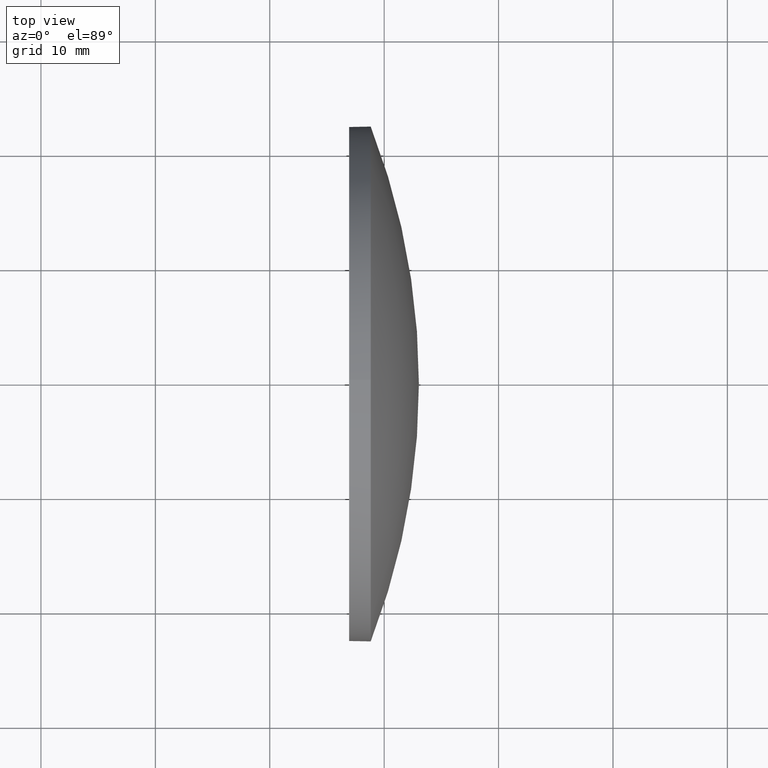
[diagram: clean part render]
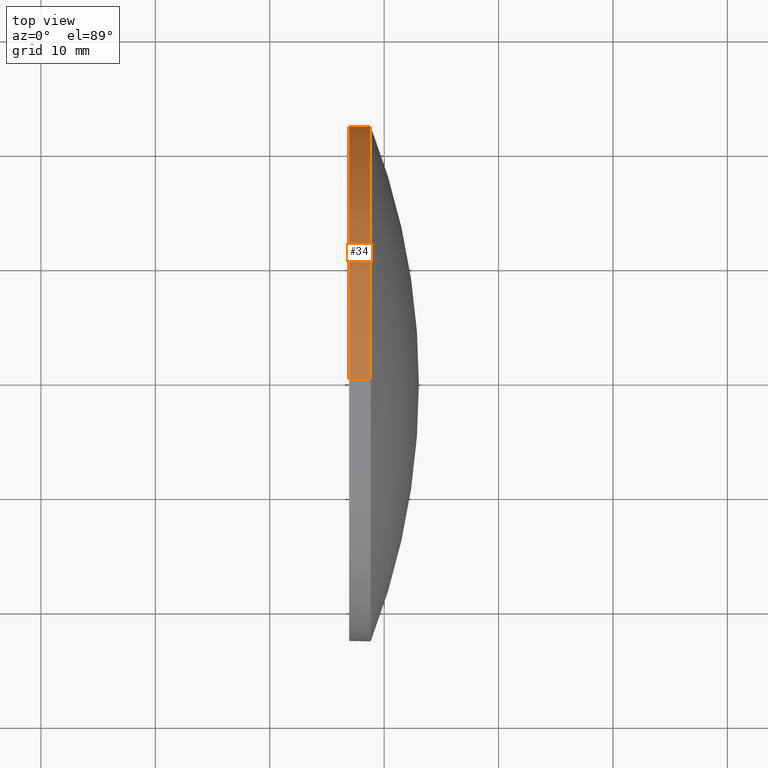
[diagram: same view with one face highlighted and labeled with its STEP entity id]
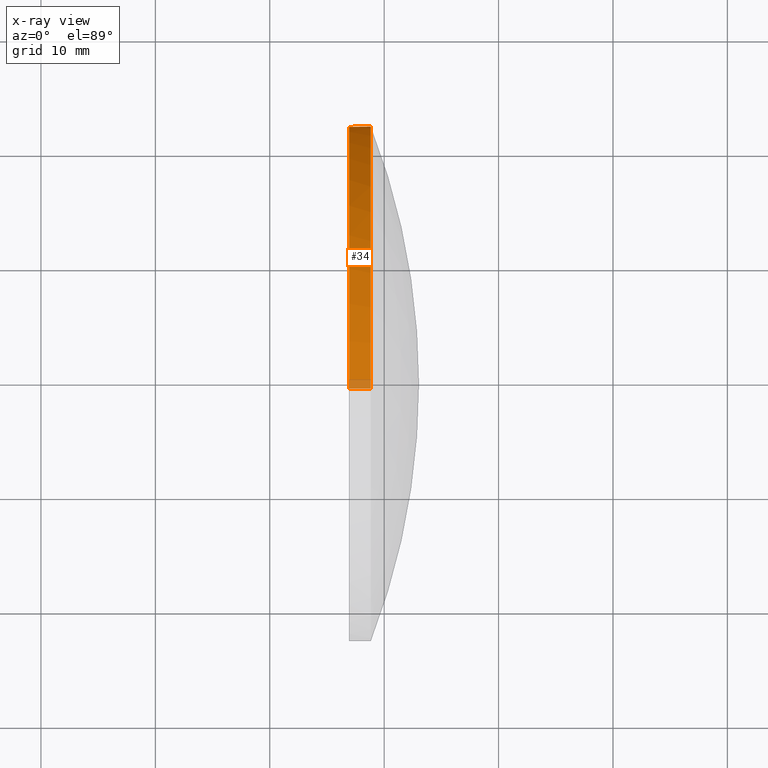
[diagram: x-ray of the same camera — body ghosted, the highlighted face saturated]
A machine part, top view. The second image highlights one B-rep face of the part: STEP entity #34.
The next image is the same camera in x-ray: the body ghosted, the highlighted face saturated — about 3% of this face is hidden behind the body in this view.
In plain terms, the highlighted cylindrical surface (partial cylindrical patch) has radius 22.5 mm, axis along (-1, -0, -0).
Its self-contained STEP definition (entity closure, byte-faithful):
#1 = DIRECTION ( 'NONE',  ( -1.000000000000000000, -0.0000000000000000000, -0.0000000000000000000 ) ) ;
#2 = DIRECTION ( 'NONE',  ( 0.0000000000000000000, 0.0000000000000000000, 1.000000000000000000 ) ) ;
#6 = CARTESIAN_POINT ( 'NONE',  ( 388.8254468989661100, -20.30678025366819400, 0.0000000000000000000 ) ) ;
#7 = CIRCLE ( 'NONE', #161, 22.50000000000000000 ) ;
#8 = EDGE_CURVE ( 'NONE', #86, #107, #7, .T. ) ;
#15 = ORIENTED_EDGE ( 'NONE', *, *, #78, .T. ) ;
#23 = DIRECTION ( 'NONE',  ( -1.000000000000000000, -0.0000000000000000000, -0.0000000000000000000 ) ) ;
#27 = AXIS2_PLACEMENT_3D ( 'NONE', #6, #80, #177 ) ;
#31 = CARTESIAN_POINT ( 'NONE',  ( 388.8254468989661100, -20.30678025366819400, 0.0000000000000000000 ) ) ;
#32 = CIRCLE ( 'NONE', #27, 22.50000000000000000 ) ;
#34 = ADVANCED_FACE ( 'NONE', ( #52 ), #73, .T. ) ;
#36 = CARTESIAN_POINT ( 'NONE',  ( 386.9354468989661200, -20.30678025366819400, 22.50000000000000000 ) ) ;
#46 = VERTEX_POINT ( 'NONE', #111 ) ;
#49 = DIRECTION ( 'NONE',  ( 0.0000000000000000000, 0.0000000000000000000, 1.000000000000000000 ) ) ;
#52 = FACE_OUTER_BOUND ( 'NONE', #64, .T. ) ;
#54 = DIRECTION ( 'NONE',  ( -1.000000000000000000, -0.0000000000000000000, -0.0000000000000000000 ) ) ;
#60 = CARTESIAN_POINT ( 'NONE',  ( 388.8254468989661100, -20.30678025366819400, 22.50000000000000000 ) ) ;
#62 = AXIS2_PLACEMENT_3D ( 'NONE', #141, #54, #66 ) ;
#64 = EDGE_LOOP ( 'NONE', ( #169, #112, #121, #165, #15 ) ) ;
#66 = DIRECTION ( 'NONE',  ( 0.0000000000000000000, 0.0000000000000000000, 1.000000000000000000 ) ) ;
#73 = CYLINDRICAL_SURFACE ( 'NONE', #152, 22.50000000000000000 ) ;
#78 = EDGE_CURVE ( 'NONE', #79, #86, #32, .T. ) ;
#79 = VERTEX_POINT ( 'NONE', #60 ) ;
#80 = DIRECTION ( 'NONE',  ( -1.000000000000000000, -0.0000000000000000000, -0.0000000000000000000 ) ) ;
#86 = VERTEX_POINT ( 'NONE', #178 ) ;
#87 = EDGE_CURVE ( 'NONE', #147, #46, #106, .T. ) ;
#93 = CARTESIAN_POINT ( 'NONE',  ( 382.8923254294812800, -20.30678025366819400, 22.50000000000000000 ) ) ;
#102 = EDGE_CURVE ( 'NONE', #107, #46, #181, .T. ) ;
#106 = CIRCLE ( 'NONE', #62, 22.50000000000000000 ) ;
#107 = VERTEX_POINT ( 'NONE', #163 ) ;
#110 = DIRECTION ( 'NONE',  ( -1.000000000000000000, -0.0000000000000000000, -0.0000000000000000000 ) ) ;
#111 = CARTESIAN_POINT ( 'NONE',  ( 386.9354468989661200, -20.30678025366819000, -22.50000000000000000 ) ) ;
#112 = ORIENTED_EDGE ( 'NONE', *, *, #102, .T. ) ;
#121 = ORIENTED_EDGE ( 'NONE', *, *, #87, .F. ) ;
#134 = VECTOR ( 'NONE', #110, 1000.000000000000000 ) ;
#136 = LINE ( 'NONE', #93, #134 ) ;
#141 = CARTESIAN_POINT ( 'NONE',  ( 386.9354468989661200, -20.30678025366819400, 0.0000000000000000000 ) ) ;
#145 = VECTOR ( 'NONE', #23, 1000.000000000000000 ) ;
#147 = VERTEX_POINT ( 'NONE', #36 ) ;
#152 = AXIS2_PLACEMENT_3D ( 'NONE', #156, #157, #2 ) ;
#156 = CARTESIAN_POINT ( 'NONE',  ( 382.8923254294812800, -20.30678025366819400, 0.0000000000000000000 ) ) ;
#157 = DIRECTION ( 'NONE',  ( -1.000000000000000000, -0.0000000000000000000, -0.0000000000000000000 ) ) ;
#161 = AXIS2_PLACEMENT_3D ( 'NONE', #31, #1, #49 ) ;
#163 = CARTESIAN_POINT ( 'NONE',  ( 388.8254468989661100, -20.30678025366819000, -22.50000000000000000 ) ) ;
#165 = ORIENTED_EDGE ( 'NONE', *, *, #167, .F. ) ;
#167 = EDGE_CURVE ( 'NONE', #79, #147, #136, .T. ) ;
#169 = ORIENTED_EDGE ( 'NONE', *, *, #8, .T. ) ;
#177 = DIRECTION ( 'NONE',  ( 0.0000000000000000000, 0.0000000000000000000, 1.000000000000000000 ) ) ;
#178 = CARTESIAN_POINT ( 'NONE',  ( 388.8254468989661100, 2.193219746331801700, 0.0000000000000000000 ) ) ;
#179 = CARTESIAN_POINT ( 'NONE',  ( 382.8923254294812800, -20.30678025366819000, -22.50000000000000000 ) ) ;
#181 = LINE ( 'NONE', #179, #145 ) ;